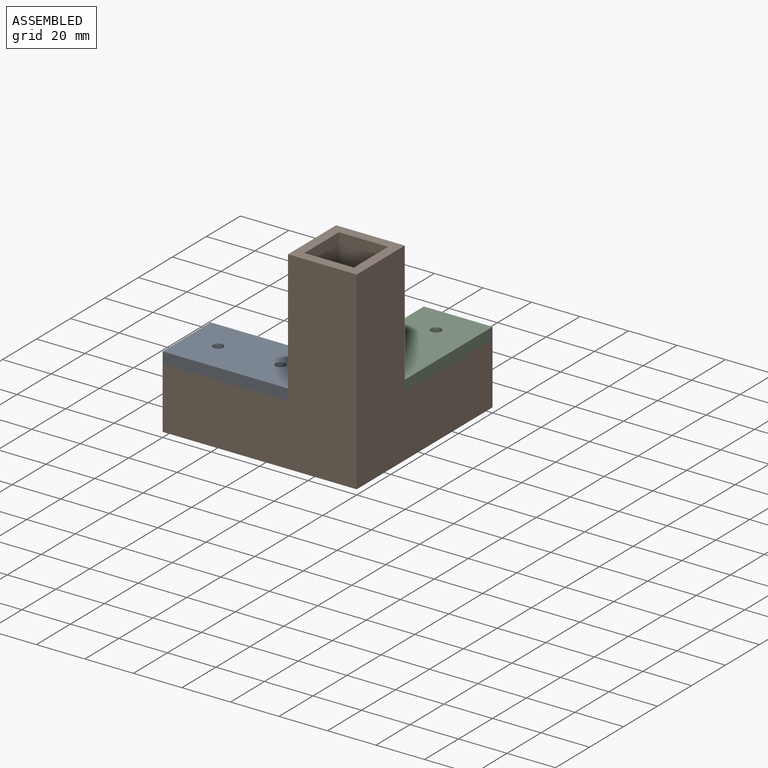
[diagram: assembled view]
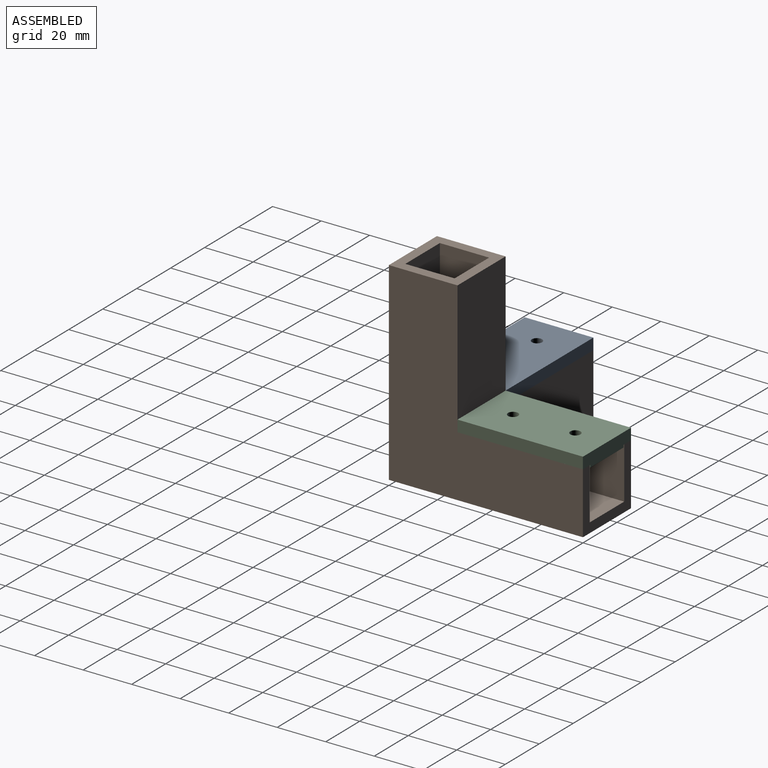
[diagram: assembled view, second angle]
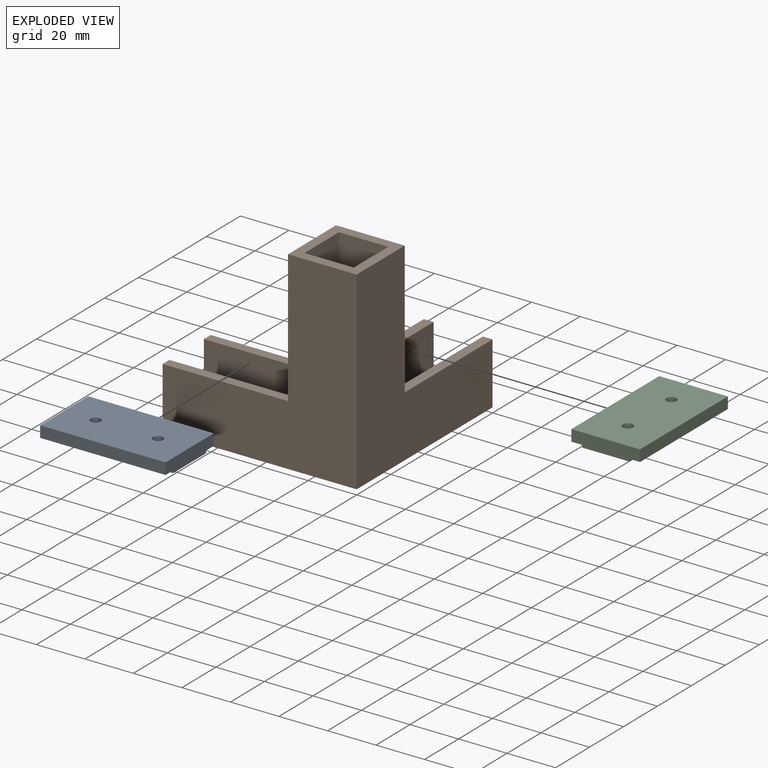
[diagram: exploded view]
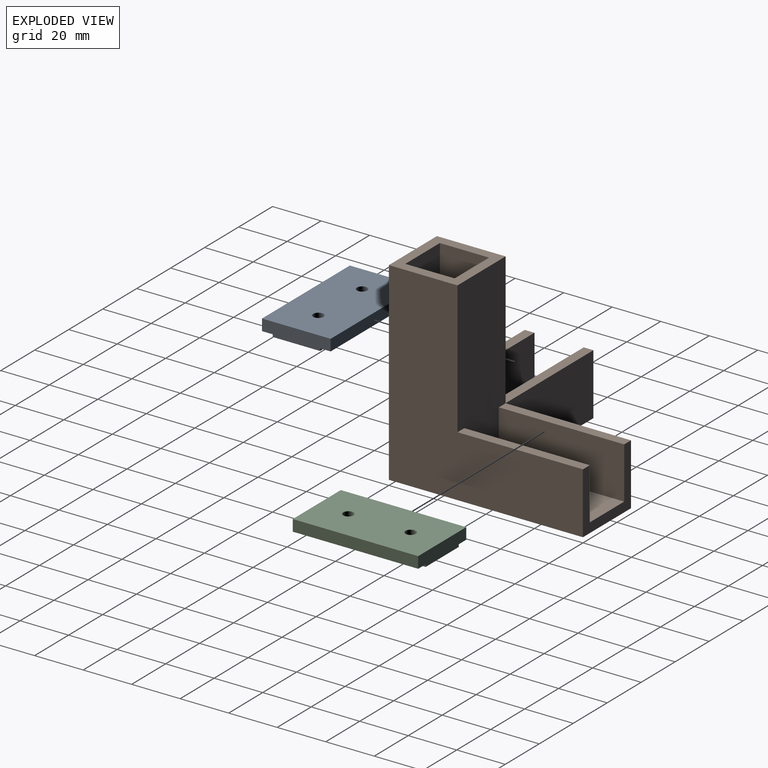
[diagram: exploded view, second angle]
ASSEMBLY  parts=3 mates=2
PART A: 12 faces, bbox 28.3x5.7x51.7 mm
  f0: plane 51.7x4.4mm, normal (0,-1,0), area 227.5mm2, adj f3,f5,f6,f7
  f1: plane 51.7x4.4mm, normal (0,-1,0), area 227.5mm2, adj f2,f5,f7,f8
  f2: plane 51.7x4.7mm, normal (1,0,0), area 243mm2, adj f1,f5,f7,f9
  f3: plane 51.7x4.7mm, normal (-1,0,0), area 243mm2, adj f0,f5,f7,f9
  f4: cylinder r=2.1mm len=5.7mm, axis (0,-1,0), area 75.2mm2, adj f9,f10
  f5: plane 28.3x5.7mm, normal (0,0,1), area 152.5mm2, adj f0,f1,f2,f3,f6,f8,f9,f10
  f6: plane 51.7x1mm, normal (-1,0,0), area 51.7mm2, adj f0,f5,f7,f10
  f7: plane 28.3x5.7mm, normal (0,0,-1), area 152.5mm2, adj f0,f1,f2,f3,f6,f8,f9,f10
  f8: plane 51.7x1mm, normal (1,0,0), area 51.7mm2, adj f1,f5,f7,f10
  f9: plane 51.7x28.3mm, normal (0,1,0), area 1435.4mm2, adj f2,f3,f4,f5,f7,f11
  f10: plane 51.7x19.5mm, normal (0,-1,0), area 980.4mm2, adj f4,f5,f6,f7,f8,f11
  f11: cylinder r=2.1mm len=5.7mm, axis (0,-1,0), area 75.2mm2, adj f9,f10
PART B: 57 faces, bbox 80x80x80 mm
  f0: plane 8.43x7.3mm, normal (0,-1,0), area 32.3mm2, adj f5,f8,f9,f10,f11,f12,f13
  f1: plane 8.43x7.3mm, normal (0,-1,0), area 32.3mm2, adj f7,f14,f15,f16,f17,f18,f19
  f2: plane 8.43x7.3mm, normal (0,-1,0), area 32.3mm2, adj f6,f20,f21,f22,f23,f24,f25
  f3: plane 8.43x7.3mm, normal (0,-1,0), area 32.3mm2, adj f4,f26,f27,f28,f29,f30,f31
  f4: cylinder r=2.1mm len=4.2mm, axis (0,1,0), area 10.6mm2, adj f3,f35
  f5: cylinder r=2.1mm len=4.2mm, axis (0,1,0), area 10.6mm2, adj f0,f35
  f6: cylinder r=2.1mm len=4.2mm, axis (0,1,0), area 10.6mm2, adj f2,f39
  f7: cylinder r=2.1mm len=4.2mm, axis (0,1,0), area 10.6mm2, adj f1,f39
  f8: plane 4.21x3.2mm, normal (-1,0,0), area 13.5mm2, adj f0,f9,f13,f45
  f9: plane 3.65x3.2mm, normal (-0.5,0,0.87), area 13.5mm2, adj f0,f8,f10,f45
  f10: plane 3.65x3.2mm, normal (0.5,0,0.87), area 13.5mm2, adj f0,f9,f11,f45
  f11: plane 4.21x3.2mm, normal (1,0,0), area 13.5mm2, adj f0,f10,f12,f45
  f12: plane 3.65x3.2mm, normal (0.5,0,-0.87), area 13.5mm2, adj f0,f11,f13,f45
  f13: plane 3.65x3.2mm, normal (-0.5,0,-0.87), area 13.5mm2, adj f0,f8,f12,f45
  f14: plane 4.21x3.2mm, normal (0,0,-1), area 13.5mm2, adj f1,f15,f19,f45
  f15: plane 3.65x3.2mm, normal (-0.87,0,-0.5), area 13.5mm2, adj f1,f14,f16,f45
  f16: plane 3.65x3.2mm, normal (-0.87,0,0.5), area 13.5mm2, adj f1,f15,f17,f45
  f17: plane 4.21x3.2mm, normal (0,0,1), area 13.5mm2, adj f1,f16,f18,f45
  f18: plane 3.65x3.2mm, normal (0.87,0,0.5), area 13.5mm2, adj f1,f17,f19,f45
  f19: plane 3.65x3.2mm, normal (0.87,0,-0.5), area 13.5mm2, adj f1,f14,f18,f45
  f20: plane 3.65x3.2mm, normal (-0.87,0,0.5), area 13.5mm2, adj f2,f21,f25,f45
  f21: plane 4.21x3.2mm, normal (0,0,1), area 13.5mm2, adj f2,f20,f22,f45
  f22: plane 3.65x3.2mm, normal (0.87,0,0.5), area 13.5mm2, adj f2,f21,f23,f45
  f23: plane 3.65x3.2mm, normal (0.87,0,-0.5), area 13.5mm2, adj f2,f22,f24,f45
  f24: plane 4.21x3.2mm, normal (0,0,-1), area 13.5mm2, adj f2,f23,f25,f45
  f25: plane 3.65x3.2mm, normal (-0.87,0,-0.5), area 13.5mm2, adj f2,f20,f24,f45
  f26: plane 4.21x3.2mm, normal (-1,0,0), area 13.5mm2, adj f3,f27,f31,f45
  f27: plane 3.65x3.2mm, normal (-0.5,0,0.87), area 13.5mm2, adj f3,f26,f28,f45
  f28: plane 3.65x3.2mm, normal (0.5,0,0.87), area 13.5mm2, adj f3,f27,f29,f45
  f29: plane 4.21x3.2mm, normal (1,0,0), area 13.5mm2, adj f3,f28,f30,f45
  f30: plane 3.65x3.2mm, normal (0.5,0,-0.87), area 13.5mm2, adj f3,f29,f31,f45
  f31: plane 3.65x3.2mm, normal (-0.5,0,-0.87), area 13.5mm2, adj f3,f26,f30,f45
  f32: plane 51.7x25.3mm, normal (0,0,-1), area 1308mm2, adj f33,f41,f43,f45
  f33: plane 51.7x25.3mm, normal (-1,0,0), area 1308mm2, adj f32,f37,f45,f46
  f34: plane 51.7x21.3mm, normal (-1,0,0), area 1101.2mm2, adj f35,f44,f46,f47
  f35: plane 51.7x20.3mm, normal (0,1,0), area 1021.8mm2, adj f4,f5,f34,f36,f46,f47
  f36: plane 51.7x21.3mm, normal (1,0,0), area 1101.2mm2, adj f35,f37,f46,f47
  f37: plane 51.7x4mm, normal (0,1,0), area 206.8mm2, adj f33,f36,f46,f47
  f38: plane 51.7x21.3mm, normal (0,0,-1), area 1101.2mm2, adj f39,f42,f43,f48
  f39: plane 51.7x20.3mm, normal (0,1,0), area 1021.8mm2, adj f6,f7,f38,f40,f43,f48
  f40: plane 51.7x21.3mm, normal (0,0,1), area 1101.2mm2, adj f39,f41,f43,f48
  f41: plane 51.7x4mm, normal (0,1,0), area 206.8mm2, adj f32,f40,f43,f48
  f42: plane 51.7x4mm, normal (0,1,0), area 206.8mm2, adj f38,f43,f48,f49
  f43: plane 28.3x25.3mm, normal (-1,0,0), area 283.6mm2, adj f32,f38,f39,f40,f41,f42,f45,f49
  f44: plane 51.7x4mm, normal (0,1,0), area 206.8mm2, adj f34,f46,f47,f50
  f45: plane 80x80mm, normal (0,-1,0), area 3542.5mm2, adj f8,f9,f10,f11,f12,f13,f14,f15
  f46: plane 28.3x25.3mm, normal (0,0,-1), area 283.6mm2, adj f33,f34,f35,f36,f37,f44,f45,f50
  f47: plane 76x28.3mm, normal (0,0,-1), area 1980.4mm2, adj f34,f35,f36,f37,f44,f48,f50,f51
  f48: plane 76x28.3mm, normal (-1,0,0), area 1980.4mm2, adj f38,f39,f40,f41,f42,f47,f49,f51
  f49: plane 80x80mm, normal (0,0,1), area 3572mm2, adj f42,f43,f45,f48,f50,f51
  f50: plane 80x80mm, normal (1,0,0), area 3572mm2, adj f44,f45,f46,f47,f49,f51
  f51: plane 28.3x28.3mm, normal (0,1,0), area 388.8mm2, adj f47,f48,f49,f50,f52,f53,f54,f55
  f52: plane 76x20.3mm, normal (-1,0,0), area 1542.8mm2, adj f51,f53,f55,f56
  f53: plane 76x20.3mm, normal (0,0,-1), area 1542.8mm2, adj f51,f52,f54,f56
  f54: plane 76x20.3mm, normal (1,0,0), area 1542.8mm2, adj f51,f53,f55,f56
  f55: plane 76x20.3mm, normal (0,0,1), area 1542.8mm2, adj f51,f52,f54,f56
  f56: plane 20.3x20.3mm, normal (0,1,0), area 412.1mm2, adj f52,f53,f54,f55
PART C: same geometry as A
PLACE A rot(axis=(0.58,-0.58,-0.58),120deg) t=(-54.15,14.15,25.3)mm
PLACE B rot(axis=(1,0,0),90deg) t=(-40,40,0)mm fixed
PLACE C rot(axis=(1,0,0),90deg) t=(-14.15,54.15,25.3)mm
MATE fastened B.f50 <-> C.f2  axis (1,0,0) through (0,28.3,25.3)mm
MATE fastened B.f49 <-> A.f2  axis (0,-1,0) through (-28.3,0,25.3)mm
